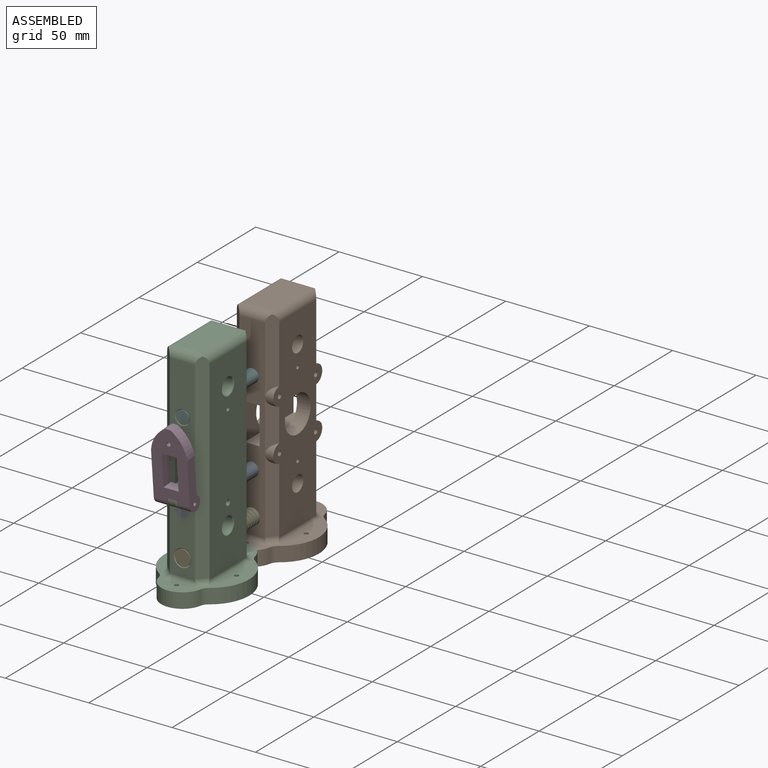
[diagram: assembled view]
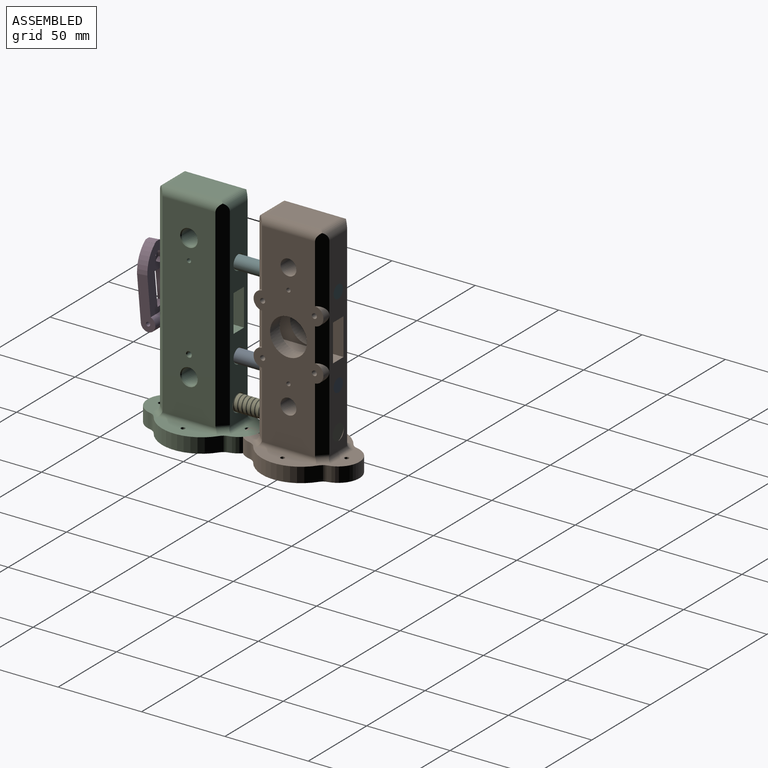
[diagram: assembled view, second angle]
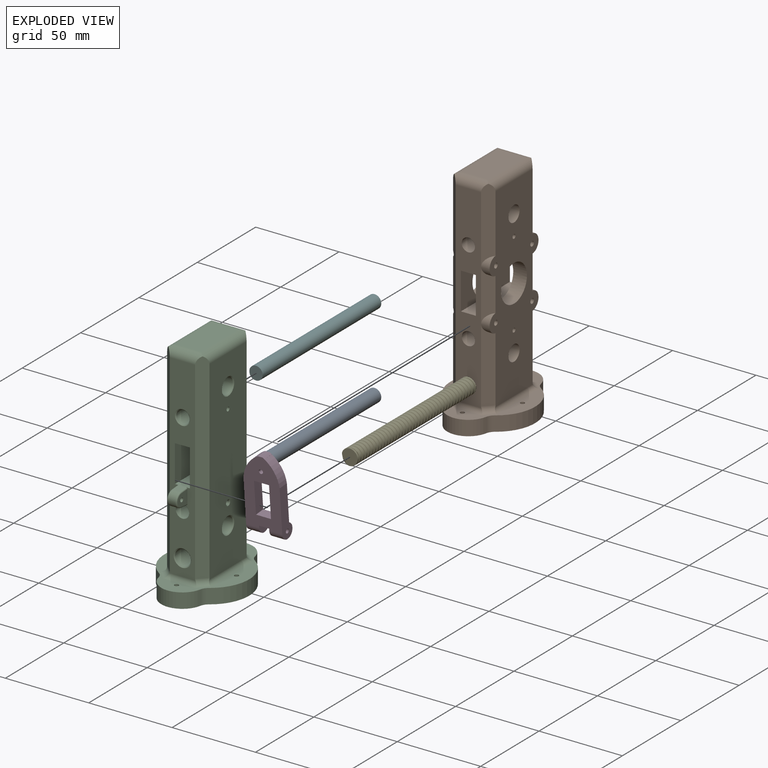
[diagram: exploded view]
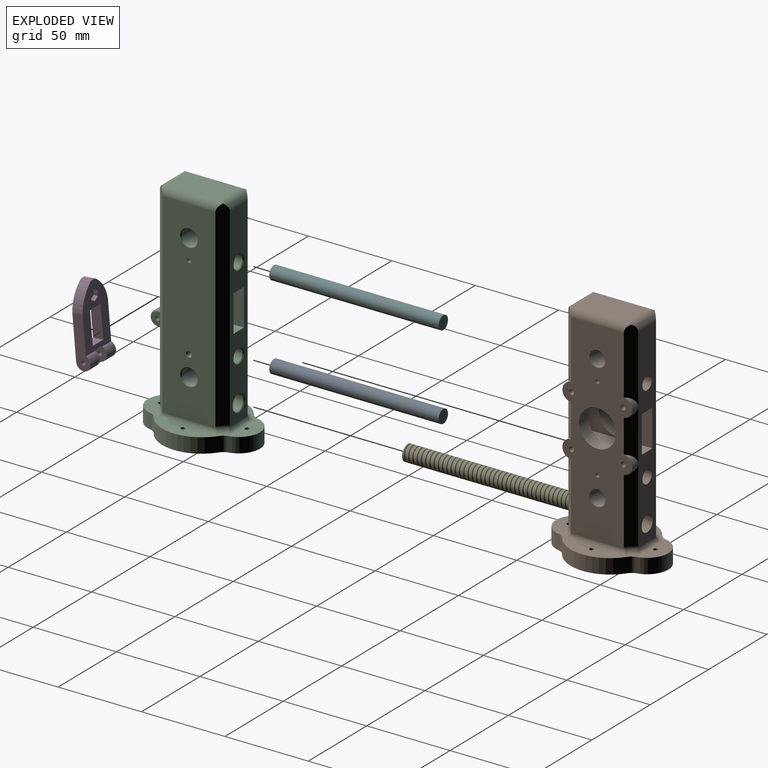
[diagram: exploded view, second angle]
ASSEMBLY  parts=6 mates=5
PART A: 3 faces, bbox 8x101.6x8 mm
  f0: cylinder r=4mm len=101.6mm, axis (0,1,0), area 2553.8mm2, adj f1,f2
  f1: plane 8x8mm, normal (0,-1,0), area 50.3mm2, adj f0
  f2: plane 8x8mm, normal (0,1,0), area 50.3mm2, adj f0
PART B: 62 faces, bbox 50.8x67.3x133.4 mm
  f0: plane 44.44x5.08mm, normal (0.71,0.71,0), area 289.1mm2, adj f5,f6,f49,f52
  f1: plane 30.95x5.08mm, normal (0.71,0.71,0), area 162.4mm2, adj f5,f6,f47,f49
  f2: plane 44.78x5.08mm, normal (0.71,-0.71,0), area 282.4mm2, adj f4,f6,f45,f59,f61
  f3: plane 16.89x8.99mm, normal (0,0,-1), area 151.9mm2, adj f4,f10,f12,f20
  f4: plane 116.84x15.66mm, normal (0,-1,0), area 1410.3mm2, adj f2,f3,f10,f11,f12,f13,f14,f15
  f5: plane 116.84x20.53mm, normal (0,1,0), area 1410.8mm2, adj f0,f1,f6,f9,f10,f11,f12,f13
  f6: plane 116.84x41.91mm, normal (1,0,0), area 3315.7mm2, adj f0,f1,f2,f5,f17,f19,f20,f21
  f7: plane 116.84x32.17mm, normal (-1,0,0), area 3154.7mm2, adj f16,f18,f20,f21,f22,f23,f24,f25
  f8: plane 31.75x15.24mm, normal (0,0,1), area 483.9mm2, adj f58,f59,f60,f61
  f9: plane 16.89x8.99mm, normal (0,0,-1), area 151.9mm2, adj f5,f10,f12,f20
  f10: plane 41.91x22.1mm, normal (1,0,0), area 546.1mm2, adj f3,f4,f5,f9,f11,f20
  f11: plane 41.91x8.99mm, normal (0,0,1), area 376.8mm2, adj f4,f5,f10,f12
  f12: plane 41.91x22.1mm, normal (-1,0,0), area 546.1mm2, adj f3,f4,f5,f9,f11,f20
  f13: cylinder r=4.76mm len=41.91mm, axis (0,-1,0), area 1254.1mm2, adj f4,f5
  f14: cylinder r=4mm len=41.91mm, axis (0,-1,0), area 1043.6mm2, adj f4,f5,f18,f19
  f15: cylinder r=4mm len=41.91mm, axis (0,-1,0), area 1043.6mm2, adj f4,f5,f16,f17
  f16: cylinder r=1.24mm len=8.9mm, axis (-1,0,0), area 68.8mm2, adj f7,f15
  f17: cylinder r=1.24mm len=8.9mm, axis (-1,0,0), area 68.8mm2, adj f6,f15
  f18: cylinder r=1.24mm len=8.9mm, axis (-1,0,0), area 68.8mm2, adj f7,f14
  f19: cylinder r=1.24mm len=8.9mm, axis (-1,0,0), area 68.8mm2, adj f6,f14
  f20: cylinder r=11.06mm len=25.4mm, axis (-1,0,0), area 1215.1mm2, adj f3,f6,f7,f9,f10,f12
  f21: cylinder r=1.5mm len=25.4mm, axis (-1,0,0), area 236.3mm2, adj f6,f7,f41
  f22: cylinder r=1.5mm len=25.4mm, axis (-1,0,0), area 236.3mm2, adj f6,f7,f41
  f23: cylinder r=1.5mm len=25.4mm, axis (-1,0,0), area 236.3mm2, adj f6,f7,f44
  f24: cylinder r=1.5mm len=25.4mm, axis (-1,0,0), area 236.3mm2, adj f6,f7,f44
  f25: cylinder r=4.76mm len=25.4mm, axis (-1,0,0), area 760.1mm2, adj f6,f7
  f26: cylinder r=4.76mm len=25.4mm, axis (-1,0,0), area 760.1mm2, adj f6,f7
  f27: plane 67.31x50.8mm, normal (0,0,1), area 935.4mm2, adj f28,f29,f30,f31,f32,f33,f34,f35
  f28: cylinder r=6.35mm len=8.89mm, axis (0,0,1), area 43.5mm2, adj f27,f29,f39,f40
  f29: cylinder r=23.64mm len=39.05mm, axis (0,0,1), area 408.5mm2, adj f27,f28,f30,f40
  f30: cylinder r=6.35mm len=8.89mm, axis (0,0,1), area 43.5mm2, adj f27,f29,f31,f40
  f31: cylinder r=12.7mm len=24.89mm, axis (0,0,1), area 309.2mm2, adj f27,f30,f32,f40
  f32: cylinder r=6.35mm len=8.89mm, axis (0,0,1), area 43.5mm2, adj f27,f31,f33,f40
  f33: cylinder r=23.64mm len=39.05mm, axis (0,0,1), area 408.5mm2, adj f27,f32,f34,f40
  f34: cylinder r=6.35mm len=8.89mm, axis (0,0,1), area 43.5mm2, adj f27,f33,f39,f40
  f35: cylinder r=1.27mm len=8.89mm, axis (0,0,1), area 70.9mm2, adj f27,f40
  f36: cylinder r=1.27mm len=8.89mm, axis (0,0,1), area 70.9mm2, adj f27,f40
  f37: cylinder r=1.27mm len=8.89mm, axis (0,0,1), area 70.9mm2, adj f27,f40
  f38: cylinder r=1.27mm len=8.89mm, axis (0,0,1), area 70.9mm2, adj f27,f40
  f39: cylinder r=12.7mm len=24.89mm, axis (0,0,1), area 309.2mm2, adj f27,f28,f34,f40
  f40: plane 67.31x50.8mm, normal (0,0,-1), area 2315mm2, adj f28,f29,f30,f31,f32,f33,f34,f35
  f41: plane 120.22x5.08mm, normal (-0.71,0.71,0), area 847.7mm2, adj f5,f7,f21,f22,f53,f58,f60
  f42: plane 44.73x5.08mm, normal (0.71,0.71,0), area 282.4mm2, adj f5,f6,f48,f60,f61
  f43: plane 75.44x5.08mm, normal (0.71,-0.71,0), area 451.5mm2, adj f4,f6,f45,f46,f51
  f44: plane 120.22x5.08mm, normal (-0.71,-0.71,0), area 847.7mm2, adj f4,f7,f23,f24,f50,f58,f59
  f45: cylinder r=5.46mm len=10.88mm, axis (1,0,0), area 53.2mm2, adj f2,f6,f43
  f46: cylinder r=5.45mm len=10.88mm, axis (1,0,0), area 53.2mm2, adj f6,f43
  f47: cylinder r=5.46mm len=5.39mm, axis (1,0,0), area 26.3mm2, adj f1,f5,f6
  f48: cylinder r=5.46mm len=5.39mm, axis (1,0,0), area 26.3mm2, adj f5,f6,f42
  f49: cylinder r=5.45mm len=10.88mm, axis (1,0,0), area 53.2mm2, adj f0,f1,f6
  f50: cylinder r=3.56mm len=7.65mm, axis (0.71,-0.71,0), area 37.9mm2, adj f4,f7,f27,f44,f54,f57
  f51: cylinder r=3.56mm len=7.65mm, axis (-0.71,-0.71,0), area 37.9mm2, adj f4,f6,f27,f43,f54,f55
  f52: cylinder r=3.56mm len=7.65mm, axis (-0.71,0.71,0), area 37.9mm2, adj f0,f5,f6,f27,f55,f56
  f53: cylinder r=3.56mm len=7.65mm, axis (0.71,0.71,0), area 37.9mm2, adj f5,f7,f27,f41,f56,f57
  f54: cylinder r=2.54mm len=20.22mm, axis (-1,0,0), area 70.8mm2, adj f4,f27,f50,f51
  f55: cylinder r=2.54mm len=36.73mm, axis (0,-1,0), area 136.7mm2, adj f6,f27,f51,f52
  f56: cylinder r=2.54mm len=20.22mm, axis (1,0,0), area 70.8mm2, adj f5,f27,f52,f53
  f57: cylinder r=2.54mm len=36.73mm, axis (0,1,0), area 136.7mm2, adj f7,f27,f50,f53
  f58: cylinder r=5.08mm len=36.83mm, axis (0,1,0), area 269.6mm2, adj f7,f8,f41,f44,f59,f60
  f59: cylinder r=5.08mm len=20.32mm, axis (-1,0,0), area 137.9mm2, adj f2,f4,f8,f44,f58,f61
  f60: cylinder r=5.08mm len=20.32mm, axis (1,0,0), area 137.9mm2, adj f5,f8,f41,f42,f58,f61
  f61: cylinder r=5.08mm len=36.83mm, axis (0,-1,0), area 269.6mm2, adj f2,f6,f8,f42,f59,f60
PART C: 72 faces, bbox 50.8x67.3x133.4 mm
  f0: plane 41.91x8.99mm, normal (0,0,1), area 376.8mm2, adj f2,f3,f8,f9,f20
  f1: plane 8.43x8.06mm, normal (-1,0,0), area 52.4mm2, adj f2,f23,f69,f70,f71
  f2: plane 116.87x15.69mm, normal (0,-1,0), area 1323.9mm2, adj f0,f1,f7,f8,f9,f11,f19,f22
  f3: plane 116.84x15.66mm, normal (0,1,0), area 1367.1mm2, adj f0,f7,f8,f9,f40,f41,f42,f46
  f4: plane 116.84x32.17mm, normal (1,0,0), area 3520.8mm2, adj f14,f39,f40,f43,f47,f48,f51,f55
  f5: plane 116.84x32.17mm, normal (-1,0,0), area 3516mm2, adj f38,f41,f44,f46,f49,f52,f62,f63
  f6: plane 31.75x15.24mm, normal (0,0,1), area 483.9mm2, adj f50,f51,f52,f53
  f7: plane 41.91x8.99mm, normal (0,0,-1), area 376.8mm2, adj f2,f3,f8,f9
  f8: plane 41.91x22.1mm, normal (1,0,0), area 926.1mm2, adj f0,f2,f3,f7
  f9: plane 41.91x22.1mm, normal (-1,0,0), area 926.1mm2, adj f0,f2,f3,f7
  f10: cylinder r=4.76mm len=40.89mm, axis (0,-1,0), area 1223.7mm2, adj f59,f61
  f11: cylinder r=4mm len=41.4mm, axis (0,-1,0), area 1030.8mm2, adj f2,f15,f16,f58
  f12: cylinder r=4mm len=40.89mm, axis (0,-1,0), area 1018mm2, adj f13,f14,f54,f60
  f13: cylinder r=1.24mm len=8.39mm, axis (-1,0,0), area 64.8mm2, adj f12,f65
  f14: cylinder r=1.24mm len=8.9mm, axis (-1,0,0), area 68.8mm2, adj f4,f12
  f15: cylinder r=1.24mm len=8.39mm, axis (-1,0,0), area 64.8mm2, adj f11,f62
  f16: cylinder r=1.24mm len=8.39mm, axis (-1,0,0), area 64.8mm2, adj f11,f56
  f17: cylinder r=4.76mm len=24.38mm, axis (-1,0,0), area 729.7mm2, adj f57,f63
  f18: cylinder r=4.76mm len=24.38mm, axis (-1,0,0), area 729.7mm2, adj f55,f64
  f19: plane 8.43x8.06mm, normal (1,0,0), area 52.4mm2, adj f2,f23,f66,f67,f68
  f20: plane 5.17x4.45mm, normal (0,-0.08,1), area 23.1mm2, adj f0,f21,f68,f69
  f21: cylinder r=4.37mm len=8.7mm, axis (-1,0,0), area 57.7mm2, adj f20,f22,f67,f70
  f22: plane 5.22x4.45mm, normal (0,-0.09,-1), area 23.3mm2, adj f2,f21,f66,f71
  f23: cylinder r=1.24mm len=5.97mm, axis (-1,0,0), area 46.7mm2, adj f1,f19
  f24: plane 67.31x50.8mm, normal (0,0,1), area 935.4mm2, adj f25,f26,f27,f28,f29,f30,f31,f32
  f25: cylinder r=6.35mm len=8.89mm, axis (0,0,1), area 43.5mm2, adj f24,f26,f36,f37
  f26: cylinder r=23.64mm len=39.05mm, axis (0,0,1), area 408.5mm2, adj f24,f25,f27,f37
  f27: cylinder r=6.35mm len=8.89mm, axis (0,0,1), area 43.5mm2, adj f24,f26,f28,f37
  f28: cylinder r=12.7mm len=24.89mm, axis (0,0,1), area 309.2mm2, adj f24,f27,f29,f37
  f29: cylinder r=6.35mm len=8.89mm, axis (0,0,1), area 43.5mm2, adj f24,f28,f30,f37
  f30: cylinder r=23.64mm len=39.05mm, axis (0,0,1), area 408.5mm2, adj f24,f29,f31,f37
  f31: cylinder r=6.35mm len=8.89mm, axis (0,0,1), area 43.5mm2, adj f24,f30,f36,f37
  f32: cylinder r=1.27mm len=8.89mm, axis (0,0,1), area 70.9mm2, adj f24,f37
  f33: cylinder r=1.27mm len=8.89mm, axis (0,0,1), area 70.9mm2, adj f24,f37
  f34: cylinder r=1.27mm len=8.89mm, axis (0,0,1), area 70.9mm2, adj f24,f37
  f35: cylinder r=1.27mm len=8.89mm, axis (0,0,1), area 70.9mm2, adj f24,f37
  f36: cylinder r=12.7mm len=24.89mm, axis (0,0,1), area 309.2mm2, adj f24,f25,f31,f37
  f37: plane 67.31x50.8mm, normal (0,0,-1), area 2315mm2, adj f25,f26,f27,f28,f29,f30,f31,f32
  f38: plane 120.22x5.08mm, normal (-0.71,-0.71,0), area 854.5mm2, adj f2,f5,f49,f50,f52
  f39: plane 120.22x5.08mm, normal (0.71,-0.71,0), area 854.5mm2, adj f2,f4,f48,f50,f51
  f40: plane 120.22x5.08mm, normal (0.71,0.71,0), area 854.5mm2, adj f3,f4,f47,f51,f53
  f41: plane 120.22x5.08mm, normal (-0.71,0.71,0), area 854.5mm2, adj f3,f5,f46,f52,f53
  f42: cylinder r=2.54mm len=20.22mm, axis (1,0,0), area 70.8mm2, adj f3,f24,f46,f47
  f43: cylinder r=2.54mm len=36.73mm, axis (0,-1,0), area 136.7mm2, adj f4,f24,f47,f48
  f44: cylinder r=2.54mm len=36.73mm, axis (0,1,0), area 136.7mm2, adj f5,f24,f46,f49
  f45: cylinder r=2.54mm len=20.22mm, axis (-1,0,0), area 70.8mm2, adj f2,f24,f48,f49
  f46: cylinder r=3.56mm len=7.65mm, axis (0.71,0.71,0), area 37.9mm2, adj f3,f5,f24,f41,f42,f44
  f47: cylinder r=3.56mm len=7.65mm, axis (-0.71,0.71,0), area 37.9mm2, adj f3,f4,f24,f40,f42,f43
  f48: cylinder r=3.56mm len=7.65mm, axis (-0.71,-0.71,0), area 37.9mm2, adj f2,f4,f24,f39,f43,f45
  f49: cylinder r=3.56mm len=7.65mm, axis (0.71,-0.71,0), area 37.9mm2, adj f2,f5,f24,f38,f44,f45
  f50: cylinder r=5.08mm len=20.32mm, axis (-1,0,0), area 137.9mm2, adj f2,f6,f38,f39,f51,f52
  f51: cylinder r=5.08mm len=36.83mm, axis (0,-1,0), area 269.6mm2, adj f4,f6,f39,f40,f50,f53
  f52: cylinder r=5.08mm len=36.83mm, axis (0,1,0), area 269.6mm2, adj f5,f6,f38,f41,f50,f53
  f53: cylinder r=5.08mm len=20.32mm, axis (1,0,0), area 137.9mm2, adj f3,f6,f40,f41,f51,f52
  f54: cone r=4.51mm half-angle=45deg, axis (0,1,0), area 19.2mm2, adj f3,f12
  f55: cone r=5.27mm half-angle=45deg, axis (1,0,0), area 22.6mm2, adj f4,f18
  f56: cone r=1.75mm half-angle=45deg, axis (1,0,0), area 6.8mm2, adj f4,f16
  f57: cone r=5.27mm half-angle=45deg, axis (1,0,0), area 22.6mm2, adj f4,f17
  f58: cone r=4.51mm half-angle=45deg, axis (0,1,0), area 19.2mm2, adj f3,f11
  f59: cone r=5.27mm half-angle=45deg, axis (0,1,0), area 22.6mm2, adj f3,f10
  f60: cone r=4mm half-angle=45deg, axis (0,-1,0), area 19.2mm2, adj f2,f12
  f61: cone r=4.76mm half-angle=45deg, axis (0,-1,0), area 22.6mm2, adj f2,f10
  f62: cone r=1.24mm half-angle=45deg, axis (-1,0,0), area 6.8mm2, adj f5,f15
  f63: cone r=4.76mm half-angle=45deg, axis (-1,0,0), area 22.6mm2, adj f5,f17
  f64: cone r=4.76mm half-angle=45deg, axis (-1,0,0), area 22.6mm2, adj f5,f18
  f65: cone r=1.24mm half-angle=45deg, axis (-1,0,0), area 6.8mm2, adj f5,f13
  f66: cylinder r=0.76mm len=5.29mm, axis (0,1,-0.09), area 6.2mm2, adj f2,f19,f22,f67
  f67: torus R=3.6mm, axis (1,0,0), area 14.5mm2, adj f19,f21,f66,f68
  f68: cylinder r=0.76mm len=5.23mm, axis (0,-1,-0.08), area 6.2mm2, adj f2,f19,f20,f67
  f69: cylinder r=0.76mm len=5.23mm, axis (0,-1,-0.08), area 6.2mm2, adj f1,f2,f20,f70
  f70: torus R=3.6mm, axis (1,0,0), area 14.5mm2, adj f1,f21,f69,f71
  f71: cylinder r=0.76mm len=5.29mm, axis (0,1,-0.09), area 6.2mm2, adj f1,f2,f22,f70
PART D: 30 faces, bbox 21.7x8.7x45.2 mm
  f0: plane 30.86x8.73mm, normal (1,0,0), area 197mm2, adj f3,f4,f9,f12,f26
  f1: plane 6.22x2.82mm, normal (0,0,1), area 17.5mm2, adj f3,f4,f26,f29
  f2: plane 30.48x8.73mm, normal (-1,0,0), area 194.7mm2, adj f3,f4,f10,f11,f27
  f3: plane 40.88x21.69mm, normal (0,1,0), area 613.7mm2, adj f0,f1,f2,f5,f7,f8,f9,f10
  f4: plane 36.93x21.69mm, normal (0,-1,0), area 510.3mm2, adj f0,f1,f2,f6,f7,f8,f9,f10
  f5: cylinder r=1.24mm len=3.53mm, axis (0,-1,0), area 27.6mm2, adj f3,f25
  f6: plane 6.1x3.27mm, normal (0,0,-1), area 19.9mm2, adj f4,f7,f8,f13
  f7: plane 8.73x8.73mm, normal (-1,0,0), area 56mm2, adj f3,f4,f6,f9,f12,f13,f14
  f8: plane 8.73x8.73mm, normal (1,0,0), area 56mm2, adj f3,f4,f6,f10,f11,f13,f14
  f9: cylinder r=4.37mm len=8.73mm, axis (-1,0,0), area 145.5mm2, adj f0,f3,f4,f7
  f10: cylinder r=4.37mm len=8.73mm, axis (-1,0,0), area 145.5mm2, adj f2,f3,f4,f8
  f11: cylinder r=1.24mm len=7.8mm, axis (-1,0,0), area 61mm2, adj f2,f8
  f12: cylinder r=1.24mm len=7.8mm, axis (-1,0,0), area 61mm2, adj f0,f7
  f13: cylinder r=4.6mm len=6.1mm, axis (1,0,0), area 25.9mm2, adj f6,f7,f8,f14
  f14: plane 6.1x0.18mm, normal (0,0,-1), area 1.1mm2, adj f3,f7,f8,f13
  f15: plane 8.99x6.22mm, normal (0,0,-1), area 56mm2, adj f3,f4,f16,f18
  f16: plane 19.05x6.22mm, normal (1,0,0), area 118.5mm2, adj f3,f4,f15,f17
  f17: plane 8.99x6.22mm, normal (0,0,1), area 56mm2, adj f3,f4,f16,f18
  f18: plane 19.05x6.22mm, normal (-1,0,0), area 118.5mm2, adj f3,f4,f15,f17
  f19: plane 2.88x2.69mm, normal (0.49,0,0.87), area 8.9mm2, adj f4,f20,f24,f25
  f20: plane 2.84x2.69mm, normal (-0.51,0,0.86), area 8.9mm2, adj f4,f19,f21,f25
  f21: plane 3.3x2.69mm, normal (-1,0,-0.01), area 8.9mm2, adj f4,f20,f22,f25
  f22: plane 2.88x2.69mm, normal (-0.49,0,-0.87), area 8.9mm2, adj f4,f21,f23,f25
  f23: plane 2.84x2.69mm, normal (0.51,0,-0.86), area 8.9mm2, adj f4,f22,f24,f25
  f24: plane 3.3x2.69mm, normal (1,0,0.01), area 8.9mm2, adj f4,f19,f23,f25
  f25: plane 6.6x5.76mm, normal (0,-1,0), area 23.4mm2, adj f5,f19,f20,f21,f22,f23,f24
  f26: cylinder r=18.83mm len=14.39mm, axis (0,-1,0), area 111.5mm2, adj f0,f1,f3,f4
  f27: cylinder r=19.33mm len=14.04mm, axis (0,-1,0), area 104.5mm2, adj f2,f3,f4,f28
  f28: plane 6.22x0.04mm, normal (-0.86,0,-0.51), area 0.3mm2, adj f3,f4,f27,f29
  f29: plane 6.22x1.16mm, normal (-0.51,0,0.86), area 8.4mm2, adj f1,f3,f4,f28
PART E: 6 faces, bbox 11x102.4x9.5 mm
  f0: cylinder r=4.76mm len=101.6mm, axis (0,1,0), area 2334mm2, adj f1,f2,f3,f5
  f1: plane 9.53x9.34mm, normal (0,-1,0), area 68mm2, adj f0,f3,f4,f5
  f2: plane 9.53x9.34mm, normal (0,1,0), area 68mm2, adj f0,f3,f4,f5
  f3: bspline ~102.28x11mm, area 716.5mm2, adj f0,f1,f2,f4
  f4: cylinder r=4.18mm len=101.6mm, axis (0,-1,0), area -209.2mm2, adj f1,f2,f3,f5
  f5: bspline ~102.28x11mm, area 713.4mm2, adj f0,f1,f2,f4
PART F: same geometry as A
PLACE A t=(259.82,22.84,1.61)mm
PLACE B t=(234,-19.07,-2.16)mm
PLACE C t=(234,-78.76,-2.16)mm
PLACE D rot(axis=(0,-0.04,1),180deg) t=(184.31,-86.56,28.7)mm
PLACE E t=(221.3,22.84,5.78)mm
PLACE F t=(259.82,22.84,52.41)mm
MATE fastened E.f0 <-> C.f10  axis (0,-1,0) through (221.3,-78.76,10.54)mm
MATE fastened F.f0 <-> B.f15  axis (0,1,0) through (221.3,22.84,86.74)mm
MATE fastened F.f0 <-> C.f12  axis (0,-1,0) through (221.3,-78.76,86.74)mm
MATE revolute D.f9 <-> C.f21  axis (1,0,0) through (218.31,-83.58,44.77)mm
MATE fastened A.f0 <-> C.f11  axis (0,1,0) through (221.3,-78.76,35.94)mm
